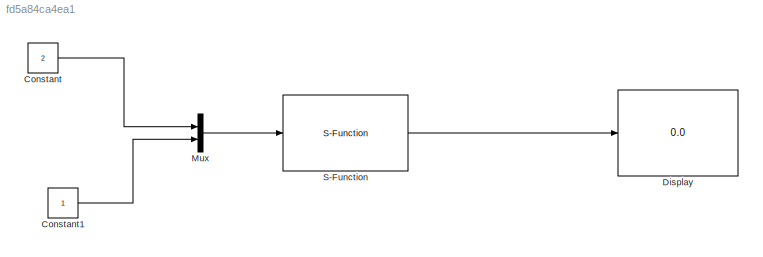
MODEL slx_fd5a84ca4ea1
KIND model
CONFIG AbsTol = auto
CONFIG FixedStep = auto
CONFIG MaxStep = auto
CONFIG MinStep = auto
CONFIG RelTol = 1e-3
CONFIG SampleTimeConstraint = Unconstrained
CONFIG Solver = ode45
CONFIG SolverMode = Auto
CONFIG SolverName = ode45
CONFIG StartTime = 0.0
CONFIG StopTime = 20
BLOCK [Constant] Constant
  Value = 2
BLOCK [Constant] Constant1
BLOCK [Display] Display
  Decimation = 1
  Ports = [1]
BLOCK [Mux] Mux
  DisplayOption = bar
  Inputs = 2
  Ports = [2, 1]
BLOCK [S-Function] S-Function
  EnableBusSupport = off
  FunctionName = yrates_sfcn
  Parameters = Y0
  Ports = [1, 1]
  SFunctionDeploymentMode = off
LINE Constant1:1 -> Mux:2
LINE Constant:1 -> Mux:1
LINE Mux:1 -> S-Function:1
LINE S-Function:1 -> Display:1
